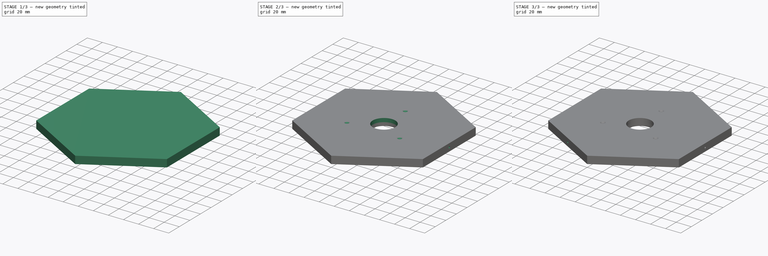
[diagram: build sequence overview — one tinted view per stage of 3, left to right]
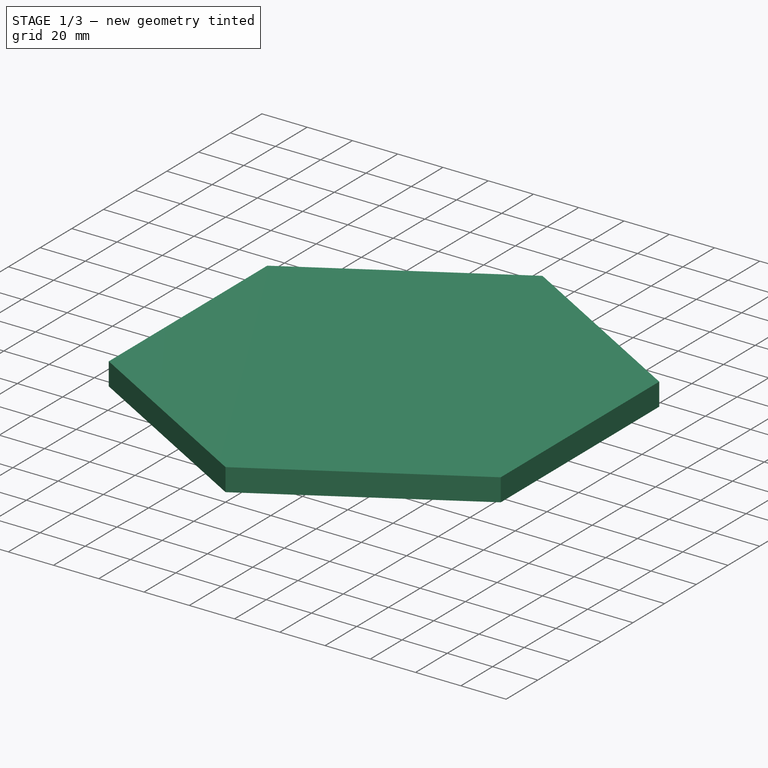
[diagram: stage 1 of 3 — iso view after this stage's code; geometry added in this stage tinted green]
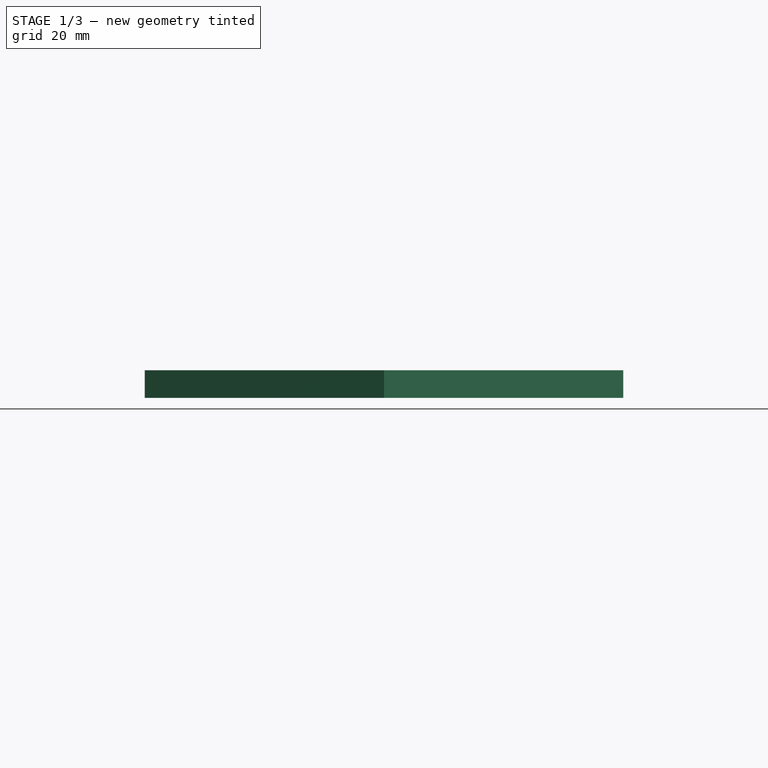
[diagram: stage 1 of 3 — front view after this stage's code; geometry added in this stage tinted green]
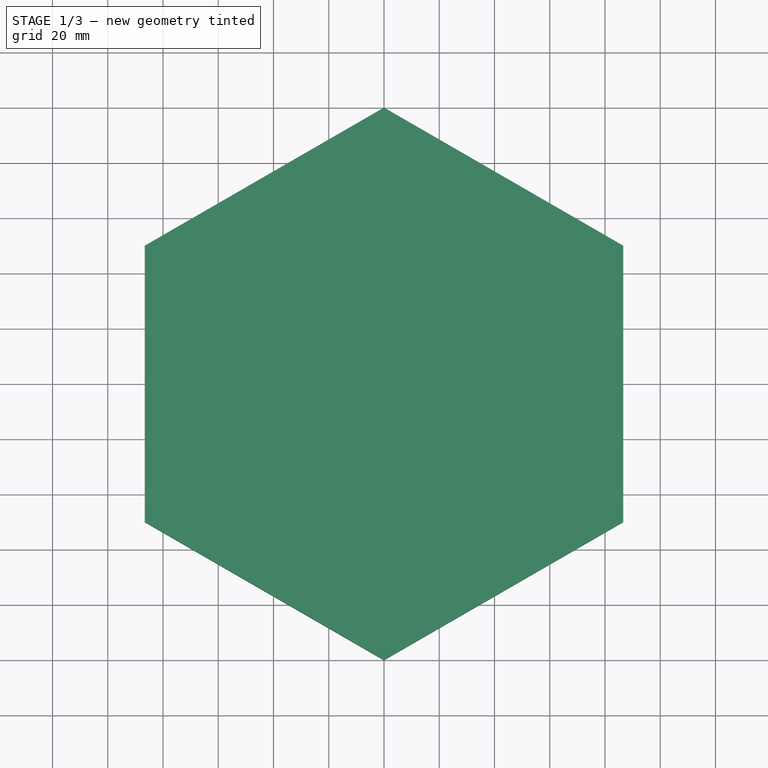
[diagram: stage 1 of 3 — top view after this stage's code; geometry added in this stage tinted green]
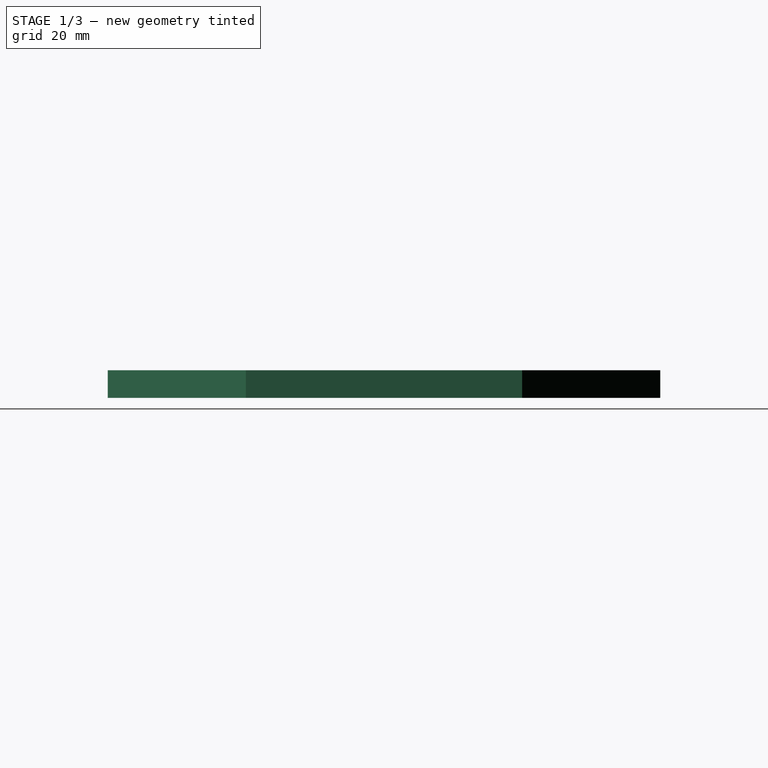
[diagram: stage 1 of 3 — right view after this stage's code; geometry added in this stage tinted green]
FCSTD DOCUMENT  (FreeCAD 0.20R29177 +426 (Git))
Label: mid_hexagon_cmmon_w_side_holes
License: All rights reserved
LicenseURL: http://en.wikipedia.org/wiki/All_rights_reserved
objects: PartDesign::CoordinateSystem×10, Sketcher::SketchObject×7, PartDesign::Hole×4, PartDesign::Pocket×2, PartDesign::Pad×1, PartDesign::Body×1
note: 32 computed .brp shape members not serialized (recipe doc carries the construction recipe); baked Part::Feature solids carry a one-line shape summary decoded from their .brp

FEATURE [Sketcher::SketchObject] Sketch092
  FullyConstrained = true
  MapMode = 5
  sketch-geometry (7):
    g0: LineSegment StartX=86.6025 StartY=50 StartZ=0 EndX=-1.42e-14 EndY=100 EndZ=0
    g1: LineSegment StartX=-1.42e-14 StartY=100 StartZ=0 EndX=-86.6025 EndY=50 EndZ=0
    g2: LineSegment StartX=-86.6025 StartY=50 StartZ=0 EndX=-86.6025 EndY=-50 EndZ=0
    g3: LineSegment StartX=-86.6025 StartY=-50 StartZ=0 EndX=0 EndY=-100 EndZ=0
    g4: LineSegment StartX=0 StartY=-100 StartZ=0 EndX=86.6025 EndY=-50 EndZ=0
    g5: LineSegment StartX=86.6025 StartY=-50 StartZ=0 EndX=86.6025 EndY=50 EndZ=0
    g6: Circle CenterX=0 CenterY=0 CenterZ=0 NormalX=0 NormalY=0 NormalZ=1 AngleXU=0 Radius=100
  constraints (16):
    c: Coincident(g0,g1)
    c: Coincident(g1,g2)
    c: Coincident(g2,g3)
    c: Coincident(g3,g4)
    c: Coincident(g4,g5)
    c: Coincident(g5,g0)
    c: Equal(g0, g1-g5) x5
    c: PointOnObject(g0,g6)
    c: PointOnObject(g1,g6)
    c: PointOnObject(g2,g6)
    c: PointOnObject(g3,g6)
    c: PointOnObject(g4,g6)
    c: PointOnObject(g5,g6)
    c: Coincident(g6,g-1)
    c: PointOnObject(g3,g-2)
    c: DistanceY(g5,g5) = 100
FEATURE [PartDesign::Pad] Pad041
  Direction = (0,0,1)
  Length = 10
  Length2 = 10
  Profile = -> Sketch092
  ReferenceAxis = -> Sketch092 [N_Axis]
  Refine = true
  Type = 0
FEATURE [Sketcher::SketchObject] Sketch093  label="lock003"
  FullyConstrained = true
  MapMode = 5
  Placement = pos=(0,0,10) rot=(0,0,1;0rad)
  sketch-geometry (1):
    g0: Circle CenterX=0 CenterY=0 CenterZ=0 NormalX=0 NormalY=0 NormalZ=1 AngleXU=0 Radius=15
  constraints (2):
    c: Coincident(g0,g-1)
    c: Diameter(g0) = 30
FEATURE [Sketcher::SketchObject] Sketch094  label="press_fit002"
  FullyConstrained = true
  MapMode = 5
  Placement = pos=(0,0,0) rot=(1,0,0;3.14159rad)
  sketch-geometry (1):
    g0: Circle CenterX=0 CenterY=0 CenterZ=0 NormalX=0 NormalY=0 NormalZ=1 AngleXU=0 Radius=15.975
  constraints (2):
    c: Coincident(g0,g-1)
    c: Diameter(g0) = 31.95
FEATURE [PartDesign::Pocket] Pocket017
  BaseFeature = -> Pad041
  Direction = (0,0,1)
  Length = 5
  Length2 = 5
  Profile = -> Sketch094
  ReferenceAxis = -> Sketch094 [N_Axis]
  Refine = true
  Type = 0
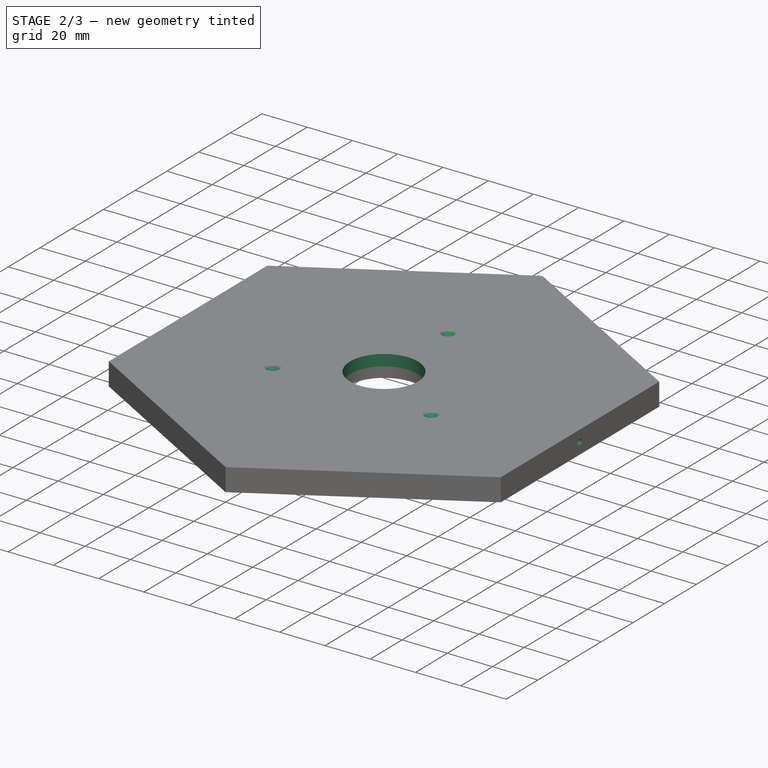
[diagram: stage 2 of 3 — iso view after this stage's code; geometry added in this stage tinted green]
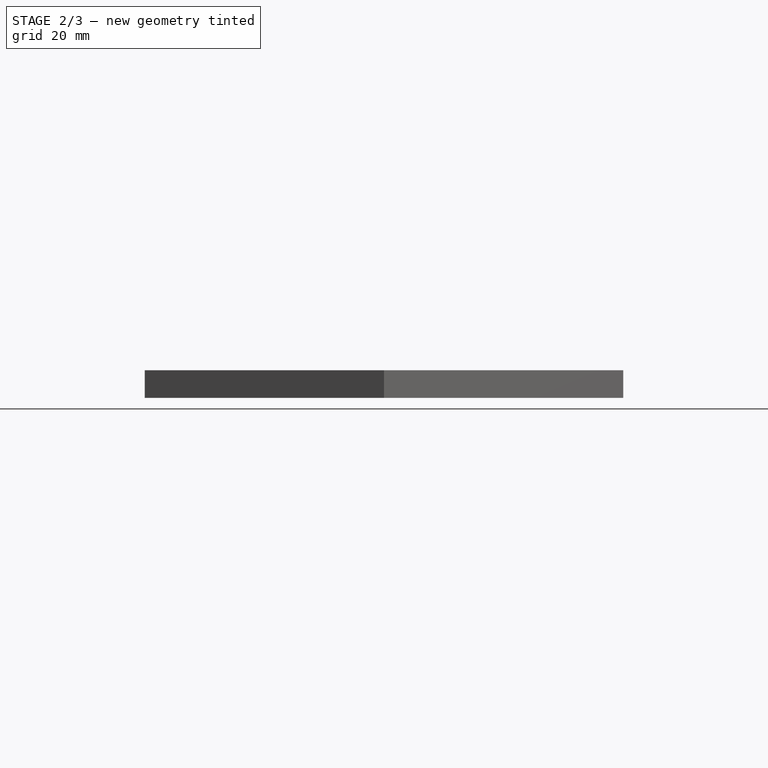
[diagram: stage 2 of 3 — front view after this stage's code; geometry added in this stage tinted green]
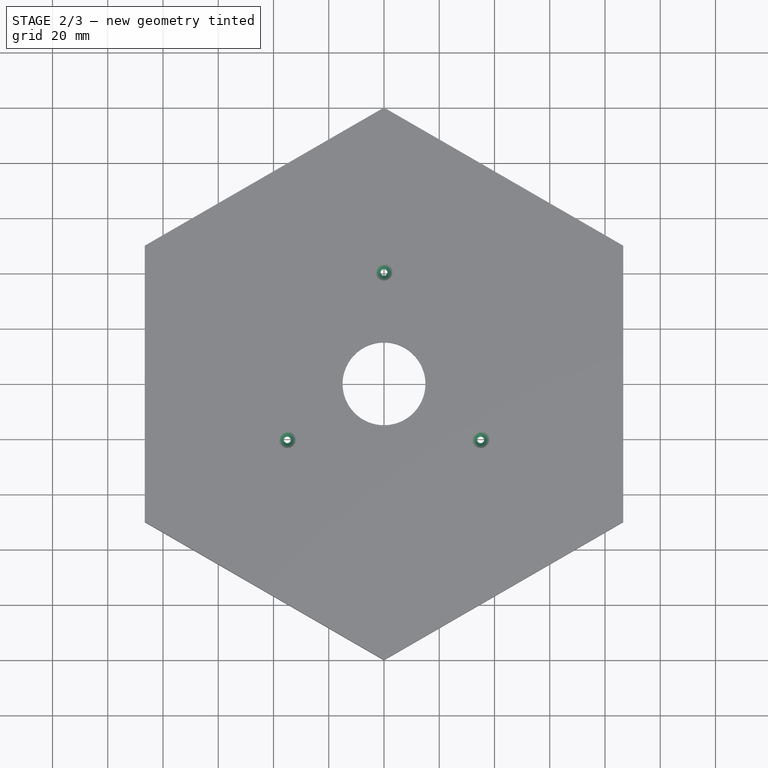
[diagram: stage 2 of 3 — top view after this stage's code; geometry added in this stage tinted green]
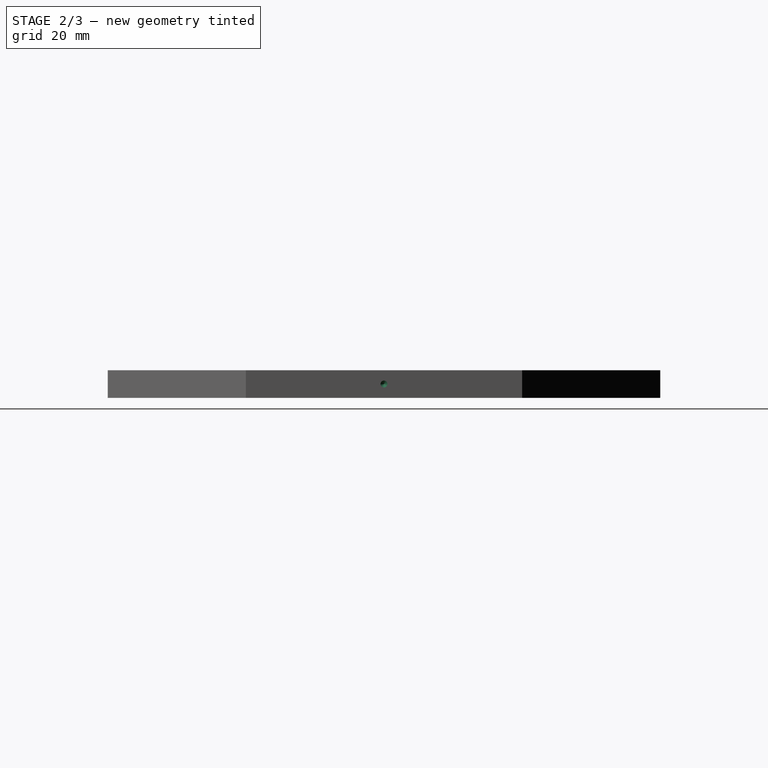
[diagram: stage 2 of 3 — right view after this stage's code; geometry added in this stage tinted green]
FEATURE [PartDesign::Pocket] Pocket018
  BaseFeature = -> Pocket017
  Direction = (0,0,-1)
  Length = 5
  Length2 = 5
  Profile = -> Sketch093
  ReferenceAxis = -> Sketch093 [N_Axis]
  Refine = true
  Type = 0
FEATURE [Sketcher::SketchObject] Sketch095
  FullyConstrained = true
  MapMode = 5
  Placement = pos=(0,0,10) rot=(0,0,1;0rad)
  Support = -> [Pocket018]
  sketch-geometry (7):
    g0: LineSegment StartX=35 StartY=-20.2073 StartZ=0 EndX=0 EndY=40.4145 EndZ=0
    g1: LineSegment StartX=0 StartY=40.4145 StartZ=0 EndX=-35 EndY=-20.2073 EndZ=0
    g2: LineSegment StartX=-35 StartY=-20.2073 StartZ=0 EndX=35 EndY=-20.2073 EndZ=0
    g3: Circle CenterX=0 CenterY=0 CenterZ=0 NormalX=0 NormalY=0 NormalZ=1 AngleXU=0 Radius=40.4145
    g4: Circle CenterX=0 CenterY=40.4145 CenterZ=0 NormalX=0 NormalY=0 NormalZ=1 AngleXU=0 Radius=3
    g5: Circle CenterX=35 CenterY=-20.2073 CenterZ=0 NormalX=0 NormalY=0 NormalZ=1 AngleXU=0 Radius=3
    g6: Circle CenterX=-35 CenterY=-20.2073 CenterZ=0 NormalX=0 NormalY=0 NormalZ=1 AngleXU=0 Radius=3
  constraints (17):
    c: Coincident(g0,g1)
    c: Coincident(g1,g2)
    c: Coincident(g2,g0)
    c: Equal(g0,g1)
    c: Equal(g0,g2)
    c: PointOnObject(g0,g3)
    c: PointOnObject(g1,g3)
    c: PointOnObject(g2,g3)
    c: Coincident(g3,g-1)
    c: PointOnObject(g0,g-2)
    c: DistanceX(g2,g2) = 70
    c: Coincident(g4,g0)
    c: Coincident(g5,g0)
    c: Coincident(g6,g1)
    c: Equal(g4,g6)
    c: Equal(g6,g5)
    c: Diameter(g4) = 6
FEATURE [PartDesign::Hole] Hole016
  BaseFeature = -> Pocket018
  CustomThreadClearance = 0
  Depth = 25
  DepthType = 0
  Diameter = 2.5
  DrillForDepth = false
  DrillPoint = 1
  DrillPointAngle = 118
  HoleCutCountersinkAngle = 90
  HoleCutCustomValues = false
  HoleCutDepth = 0
  HoleCutDiameter = 6.1
  HoleCutType = 2
  ModelThread = false
  Profile = -> Sketch095
  Refine = true
  Tapered = false
  TaperedAngle = 90
  ThreadClass = 0
  ThreadDepth = 25
  ThreadDepthType = 0
  ThreadDirection = 0
  ThreadFit = 0
  ThreadSize = 9
  ThreadType = 1
  Threaded = true
  UseCustomThreadClearance = false
FEATURE [Sketcher::SketchObject] Sketch096
  FullyConstrained = true
  MapMode = 5
  Placement = pos=(86.6025,-5.664e-13,0) rot=(0.57735,0.57735,0.57735;2.0944rad)
  Support = -> [Hole016]
  sketch-geometry (1):
    g0: Circle CenterX=0 CenterY=5 CenterZ=0 NormalX=0 NormalY=0 NormalZ=1 AngleXU=0 Radius=3
  constraints (3):
    c: PointOnObject(g0,g-2)
    c: Diameter(g0) = 6
    c: DistanceY(g-1,g0) = 5
FEATURE [PartDesign::Hole] Hole017
  BaseFeature = -> Hole016
  CustomThreadClearance = 0
  Depth = 15
  DepthType = 0
  Diameter = 2.5
  DrillForDepth = true
  DrillPoint = 1
  DrillPointAngle = 118
  HoleCutCountersinkAngle = 90
  HoleCutCustomValues = false
  HoleCutDepth = 0
  HoleCutDiameter = 6.1
  HoleCutType = 0
  ModelThread = false
  Profile = -> Sketch096
  Refine = true
  Tapered = false
  TaperedAngle = 90
  ThreadClass = 0
  ThreadDepth = 15
  ThreadDepthType = 0
  ThreadDirection = 0
  ThreadFit = 0
  ThreadSize = 9
  ThreadType = 1
  Threaded = true
  UseCustomThreadClearance = false
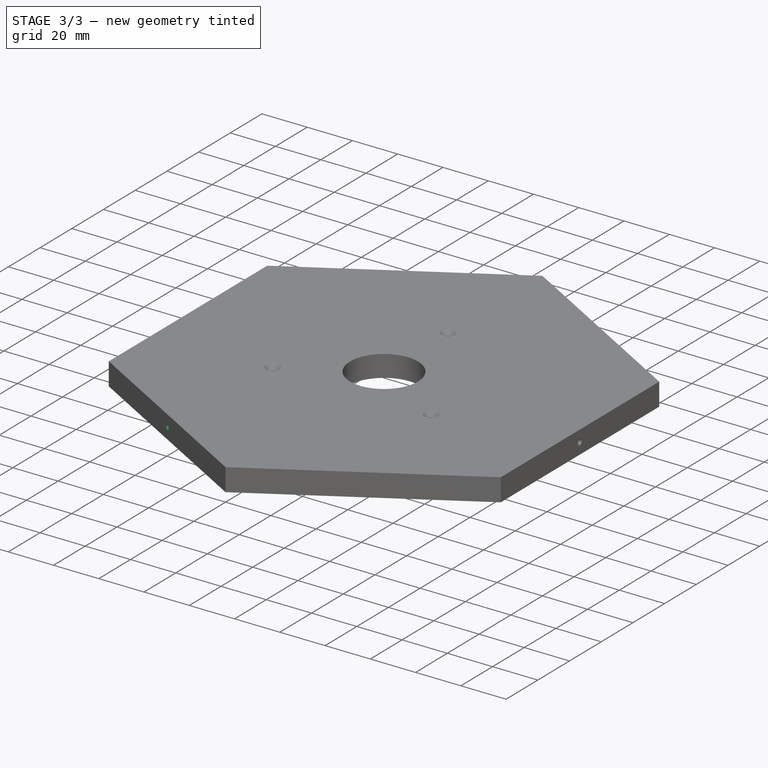
[diagram: stage 3 of 3 — iso view after this stage's code; geometry added in this stage tinted green]
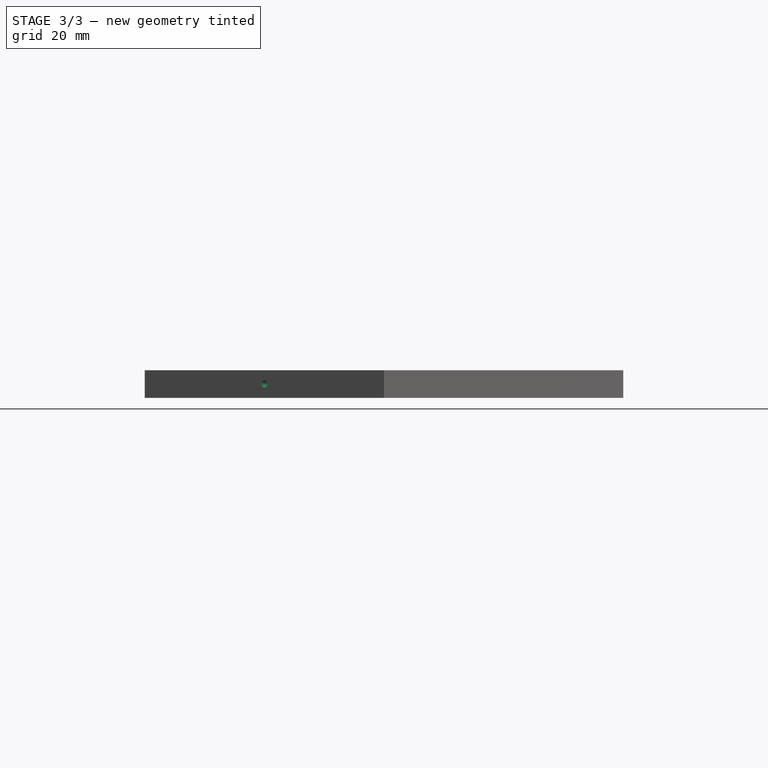
[diagram: stage 3 of 3 — front view after this stage's code; geometry added in this stage tinted green]
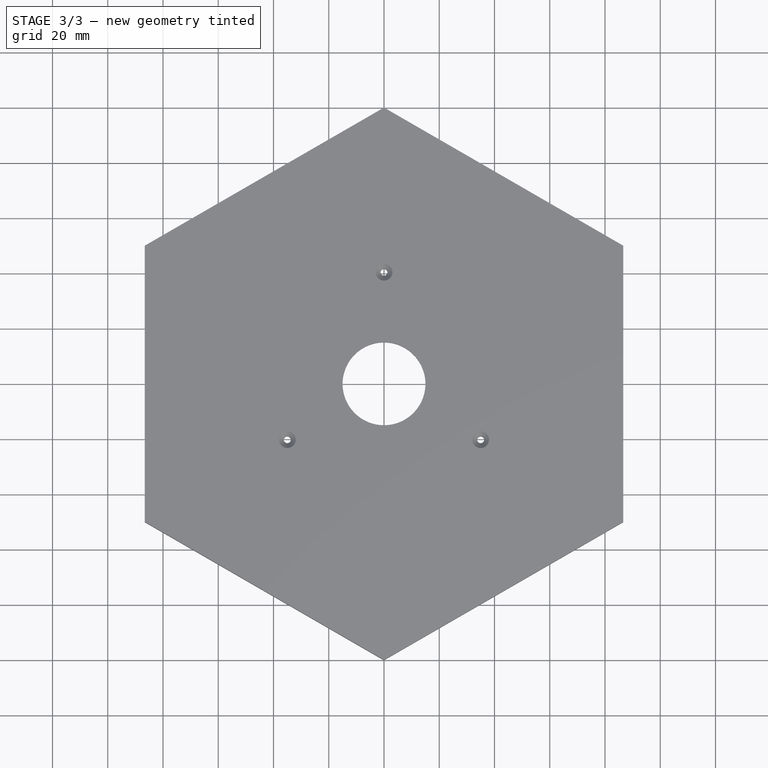
[diagram: stage 3 of 3 — top view after this stage's code; geometry added in this stage tinted green]
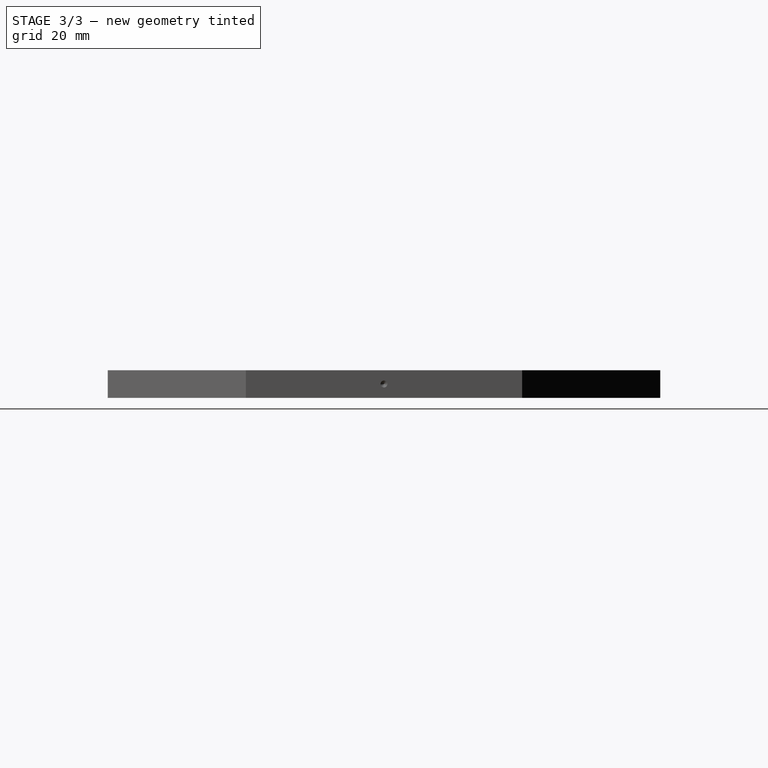
[diagram: stage 3 of 3 — right view after this stage's code; geometry added in this stage tinted green]
FEATURE [Sketcher::SketchObject] Sketch097
  FullyConstrained = true
  MapMode = 5
  Placement = pos=(-43.3013,75,0) rot=(-0.186157,0.694747,0.694747;3.50969rad)
  Support = -> [Hole017]
  sketch-geometry (1):
    g0: Circle CenterX=0 CenterY=5 CenterZ=0 NormalX=0 NormalY=0 NormalZ=1 AngleXU=0 Radius=3
  constraints (3):
    c: PointOnObject(g0,g-2)
    c: Diameter(g0) = 6
    c: DistanceY(g-1,g0) = 5
FEATURE [PartDesign::Hole] Hole018
  BaseFeature = -> Hole017
  CustomThreadClearance = 0
  Depth = 15
  DepthType = 0
  Diameter = 2.5
  DrillForDepth = true
  DrillPoint = 1
  DrillPointAngle = 118
  HoleCutCountersinkAngle = 90
  HoleCutCustomValues = false
  HoleCutDepth = 0
  HoleCutDiameter = 6.1
  HoleCutType = 0
  ModelThread = false
  Profile = -> Sketch097
  Refine = true
  Tapered = false
  TaperedAngle = 90
  ThreadClass = 0
  ThreadDepth = 15
  ThreadDepthType = 0
  ThreadDirection = 0
  ThreadFit = 0
  ThreadSize = 9
  ThreadType = 1
  Threaded = true
  UseCustomThreadClearance = false
FEATURE [Sketcher::SketchObject] Sketch
  FullyConstrained = true
  MapMode = 5
  Placement = pos=(-43.3013,-75,0) rot=(0.935113,-0.250563,-0.250563;1.63783rad)
  Support = -> [Hole018]
  sketch-geometry (1):
    g0: Circle CenterX=0 CenterY=5 CenterZ=0 NormalX=0 NormalY=0 NormalZ=1 AngleXU=0 Radius=3
  constraints (3):
    c: PointOnObject(g0,g-2)
    c: Diameter(g0) = 6
    c: DistanceY(g-1,g0) = 5
FEATURE [PartDesign::Hole] Hole
  BaseFeature = -> Hole018
  CustomThreadClearance = 0
  Depth = 15
  DepthType = 0
  Diameter = 2.5
  DrillForDepth = true
  DrillPoint = 1
  DrillPointAngle = 118
  HoleCutCountersinkAngle = 90
  HoleCutCustomValues = false
  HoleCutDepth = 0
  HoleCutDiameter = 6.1
  HoleCutType = 0
  ModelThread = false
  Profile = -> Sketch
  Tapered = false
  TaperedAngle = 90
  ThreadClass = 0
  ThreadDepth = 15
  ThreadDepthType = 0
  ThreadDirection = 0
  ThreadFit = 0
  ThreadSize = 9
  ThreadType = 1
  Threaded = true
  UseCustomThreadClearance = false
FEATURE [PartDesign::CoordinateSystem] LCS_1
  AttacherType = Attacher::AttachEngine3D
  MapMode = 12
  Placement = pos=(0,0,5) rot=(1,0,0;1.5708rad)
  Support = -> [Hole]
FEATURE [PartDesign::CoordinateSystem] LCS_Side1  label="LCS_Side001"
  AttacherType = Attacher::AttachEngine3D
  AttachmentOffset = pos=(0,0,0) rot=(-0.707107,-0.707107,0;3.14159rad)
  MapMode = 45
  Placement = pos=(-43.3013,-75,5) rot=(0.935113,-0.250563,-0.250563;1.63783rad)
  Support = -> [Hole]
FEATURE [PartDesign::CoordinateSystem] LCS_Side002
  AttacherType = Attacher::AttachEngine3D
  AttachmentOffset = pos=(0,0,0) rot=(-0.707107,-0.707107,0;3.14159rad)
  MapMode = 45
  Placement = pos=(43.3013,-75,5) rot=(-0.935113,-0.250563,-0.250563;4.64535rad)
  Support = -> [Hole]
FEATURE [PartDesign::CoordinateSystem] LCS_Side003
  AttacherType = Attacher::AttachEngine3D
  AttachmentOffset = pos=(0,0,0) rot=(0.707107,0.707107,0;3.14159rad)
  MapMode = 45
  Placement = pos=(-86.6025,-2.7e-15,5) rot=(-0.57735,0.57735,0.57735;4.18879rad)
  Support = -> [Hole]
FEATURE [PartDesign::CoordinateSystem] LCS_Side004
  AttacherType = Attacher::AttachEngine3D
  AttachmentOffset = pos=(0,0,0) rot=(0,0,-1;1.5708rad)
  MapMode = 45
  Placement = pos=(-43.3013,75,5) rot=(0.186157,-0.694747,-0.694747;2.77349rad)
  Support = -> [Hole]
FEATURE [PartDesign::CoordinateSystem] LCS_Side005
  AttacherType = Attacher::AttachEngine3D
  AttachmentOffset = pos=(0,0,0) rot=(0,0,-1;1.5708rad)
  MapMode = 45
  Placement = pos=(43.3013,75,5) rot=(0.186157,0.694747,0.694747;2.77349rad)
  Support = -> [Hole]
FEATURE [PartDesign::CoordinateSystem] LCS_Side006
  AttacherType = Attacher::AttachEngine3D
  AttachmentOffset = pos=(0,0,0) rot=(0,0,-1;1.5708rad)
  MapMode = 45
  Placement = pos=(86.6025,-1.6699e-12,5) rot=(0.57735,0.57735,0.57735;2.0944rad)
  Support = -> [Hole]
FEATURE [PartDesign::CoordinateSystem] LCS_2
  AttacherType = Attacher::AttachEngine3D
  AttachmentOffset = pos=(0,0,5) rot=(0,0,1;0rad)
  MapMode = 45
  Placement = pos=(86.6025,-50,10) rot=(0,0,1;0rad)
  Support = -> [Hole]
FEATURE [PartDesign::CoordinateSystem] LCS_3
  AttacherType = Attacher::AttachEngine3D
  AttachmentOffset = pos=(0,0,5) rot=(0,0,1;2.0944rad)
  MapMode = 45
  Placement = pos=(-1.42e-14,100,10) rot=(0,0,1;2.0944rad)
  Support = -> [Hole]
FEATURE [PartDesign::CoordinateSystem] LCS_4
  AttacherType = Attacher::AttachEngine3D
  AttachmentOffset = pos=(0,0,5) rot=(0,0,-1;2.0944rad)
  MapMode = 45
  Placement = pos=(-86.6025,-50,10) rot=(0,0,-1;2.0944rad)
  Support = -> [Hole]
FEATURE [PartDesign::Body] Body019  label="mid_hexagon_w_holes"
  Group = -> [Sketch092,Pad041,Sketch093,Sketch094,Pocket017,Pocket018,Sketch095,Hole016,Sketch096,Hole017,Sketch097,Hole018,Sketch,Hole,LCS_1,LCS_Side1,LCS_Side002,LCS_Side003,LCS_Side004,LCS_Side005,LCS_Side006,LCS_2,LCS_3,LCS_4]
  Origin = -> Origin027
  Tip = -> Hole
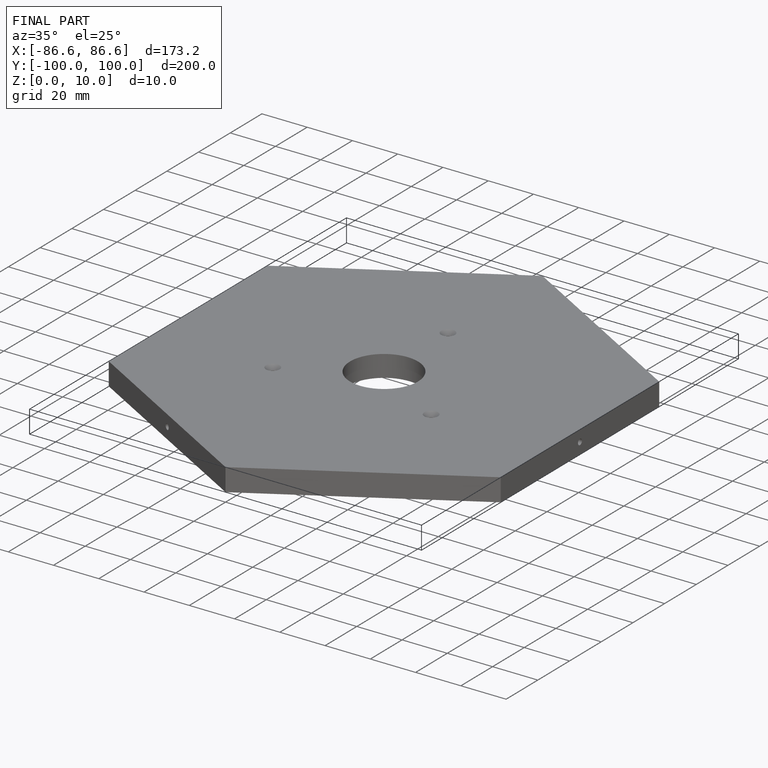
[diagram: finished part — iso view with bounding-box wireframe]
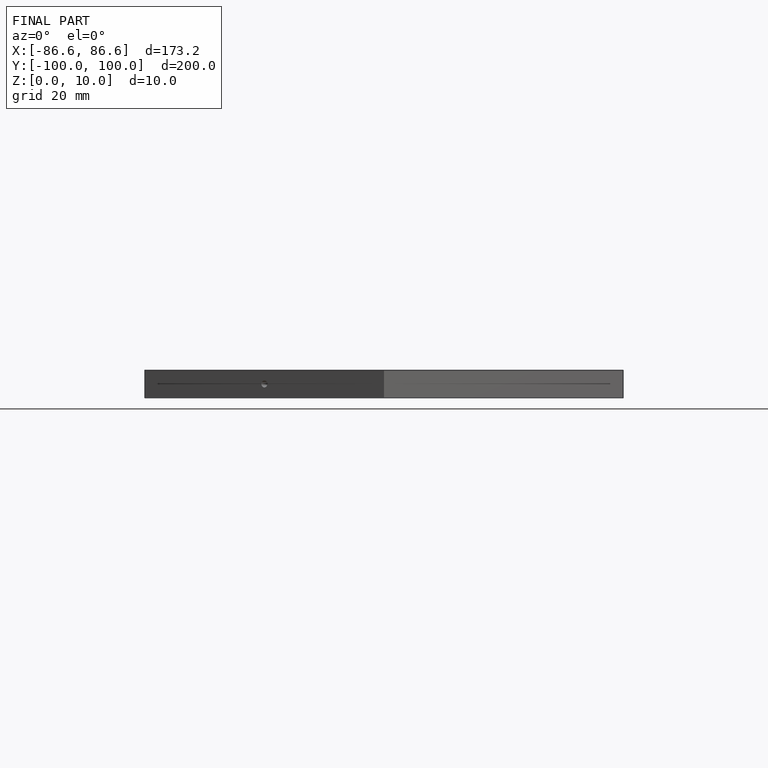
[diagram: finished part — front view with bounding-box wireframe]
